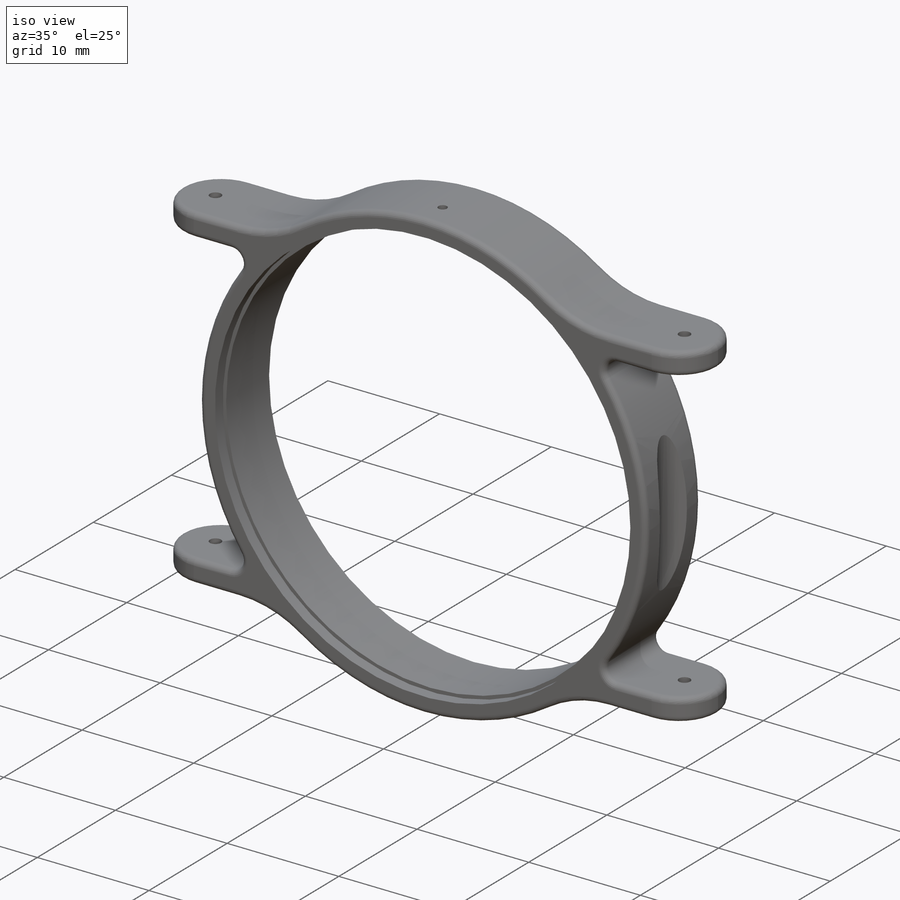
[diagram: iso view]
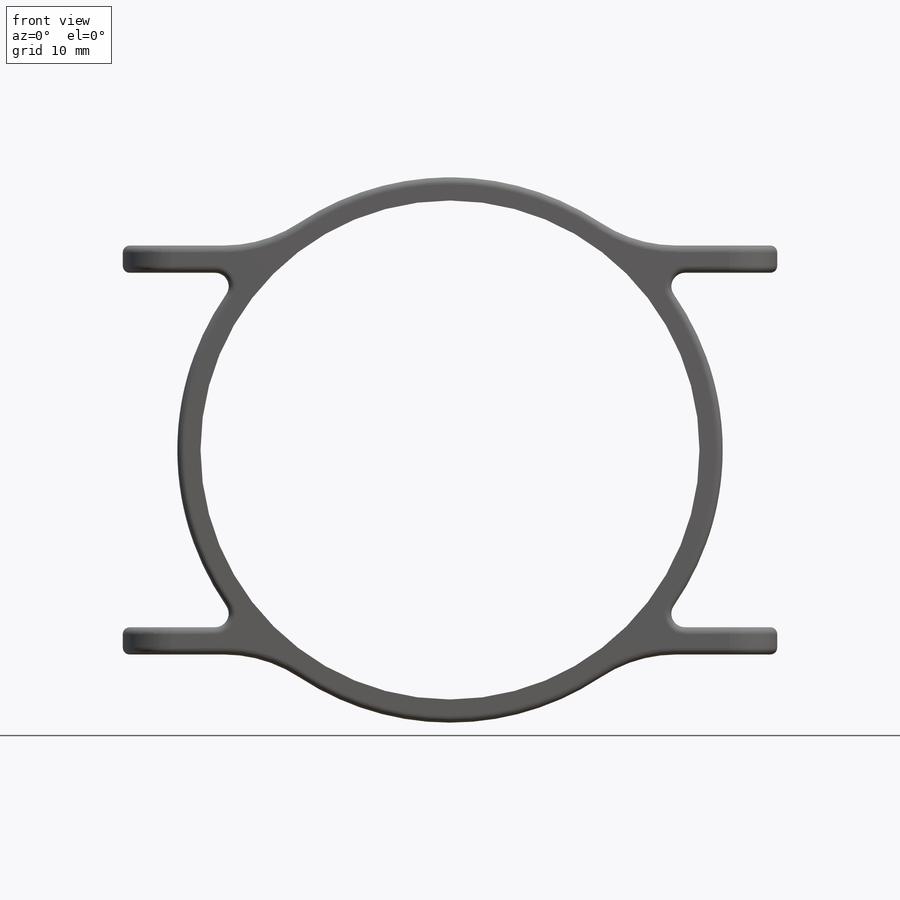
[diagram: front view]
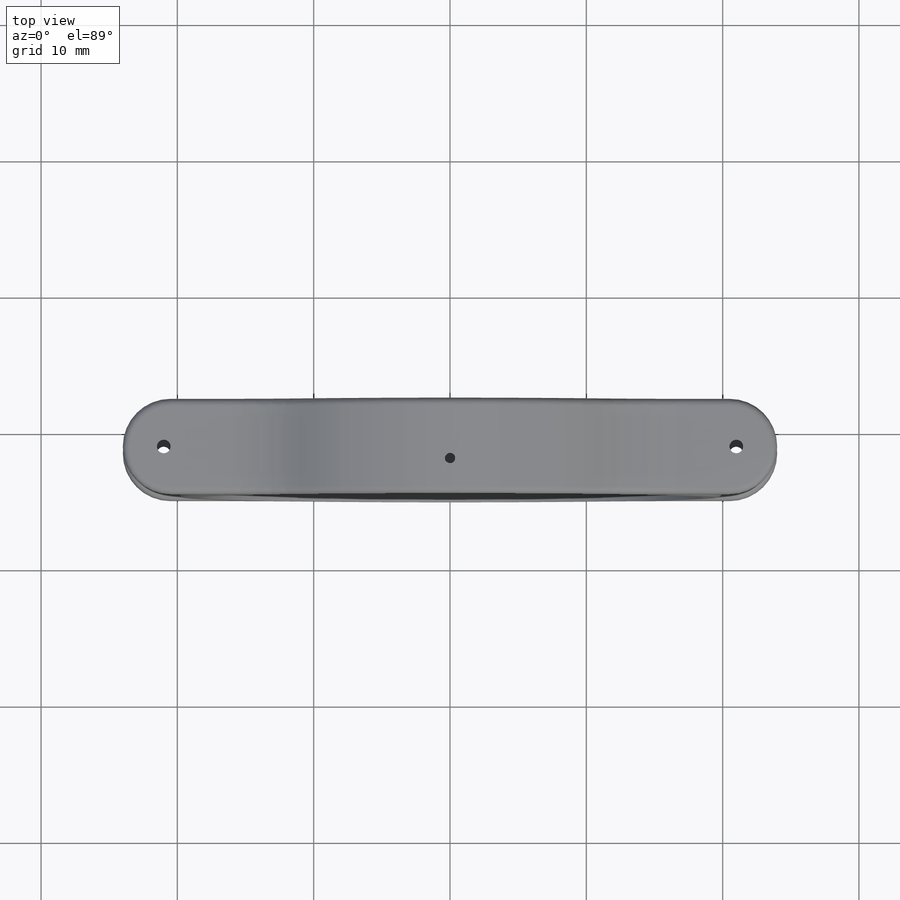
[diagram: top view]
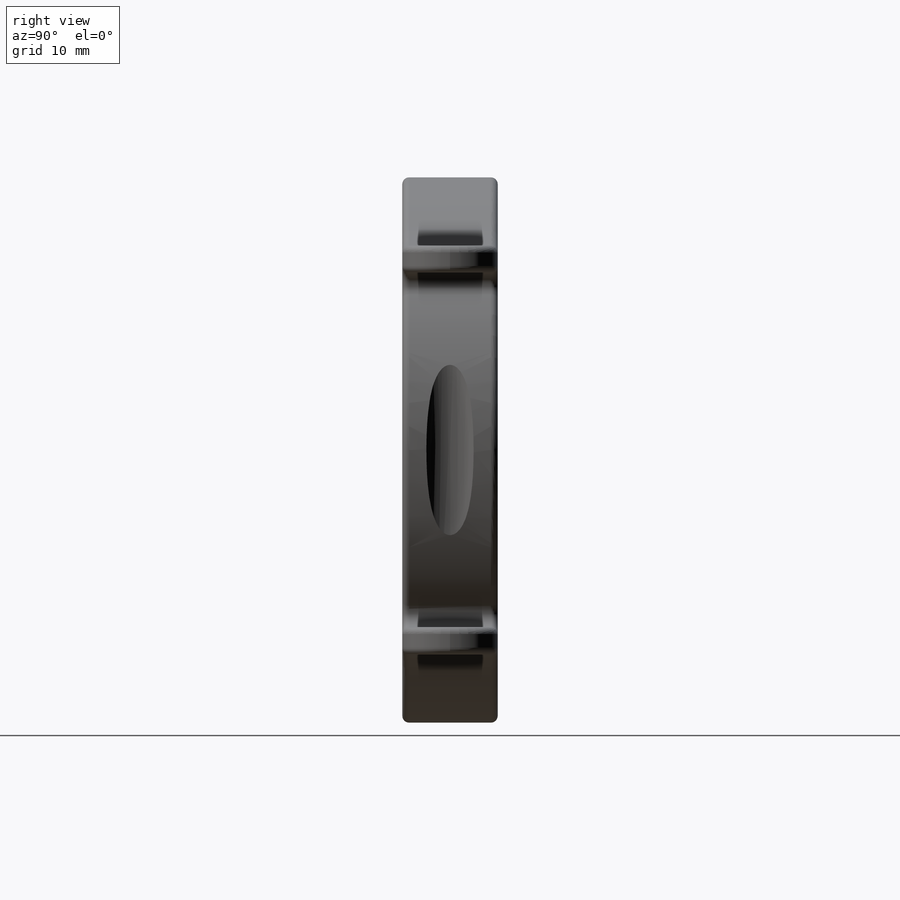
[diagram: right view]
SOLIDWORKS PART (.sldprt)
format: sldprt  version: not decoded by parser v0  size: 429,056 bytes
history: native  units: mm
features: sketch x8, cut_extrude x6, fillet x4, extrude x2, material x1 (+11 scaffold rows collapsed)
feature tree (32):
  scaffold x11  (default folders/planes/origin — collapsed)
  material  "Material <not specified>"
  sketch  "Sketch1"
  extrude  "Boss-Extrude1"  Depth=5mm
  sketch  "Sketch2"  dims[D1=1.0mm]
  cut_extrude  "Cut-Extrude1"  Depth=0.5mm
  sketch  "Sketch5"  dims[D1=0.0mm]
  cut_extrude  "Cut-Extrude9"  [1 undecoded]
  sketch  "Sketch6"  dims[D1=30.0mm D2=15.0mm D3=24.0mm D4=24.0mm]
  extrude  "Boss-Extrude2"  [1 undecoded]
  fillet  "Fillet4"  Radius=10mm
  sketch  "Sketch9"  dims[D1=0.0mm D2=0.0mm D3=2.0mm D4=2.0mm D5=2.0mm D6=2.0mm]
  cut_extrude  "Cut-Extrude12"  [1 undecoded]
  fillet  "Fillet5"  Radius=1mm
  fillet  "Fillet6"  Radius=3.5mm
  fillet  "Fillet7"  Radius=0.5mm
  sketch  "Sketch10"  dims[D1=1.0mm D2=21.0mm D3=21.0mm D4=1.5mm]
  cut_extrude  "Cut-Extrude13"  [1 undecoded]
  sketch  "Sketch11"  dims[D1=0.3mm]
  cut_extrude  "Cut-Extrude14"  Depth=1mm
  sketch  "Sketch13"  dims[D1=4.0mm]
  cut_extrude  "Cut-Extrude16"  [1 undecoded]
decode coverage: 14 of 20 modeling features carry decoded parameters
note: 5 parameter values undecoded
summary: no parameter record found for 5 features
note: suppression state not decoded; provenance and decode notes live in map.json
